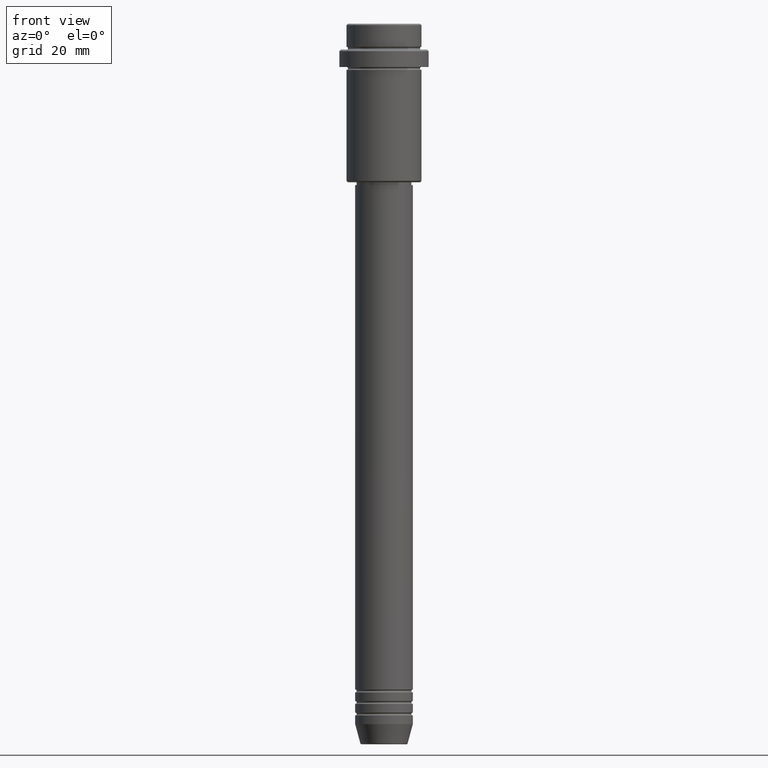
[diagram: clean part render]
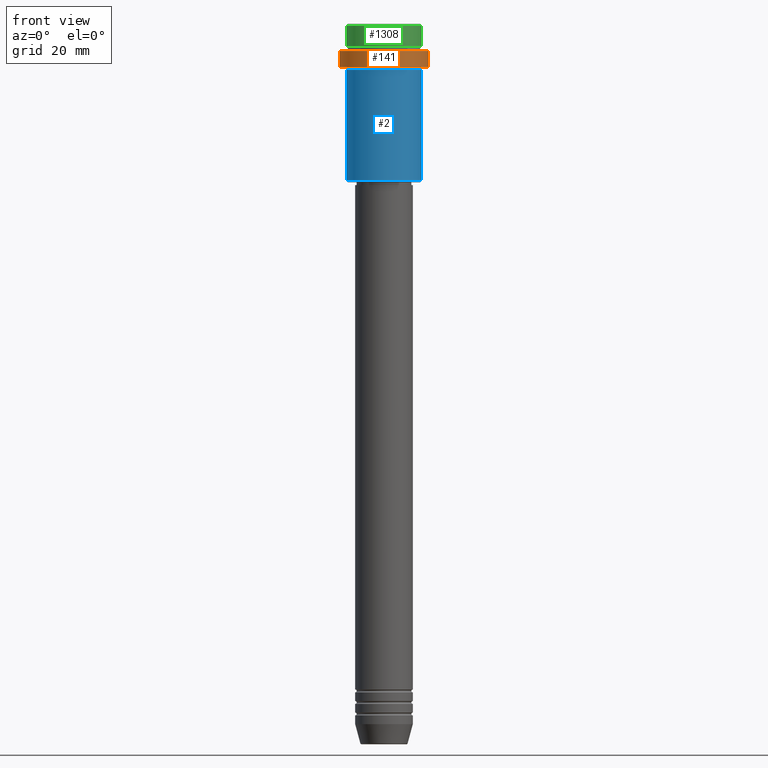
[diagram: same view with three faces highlighted in distinct colors, each labeled with its STEP entity id]
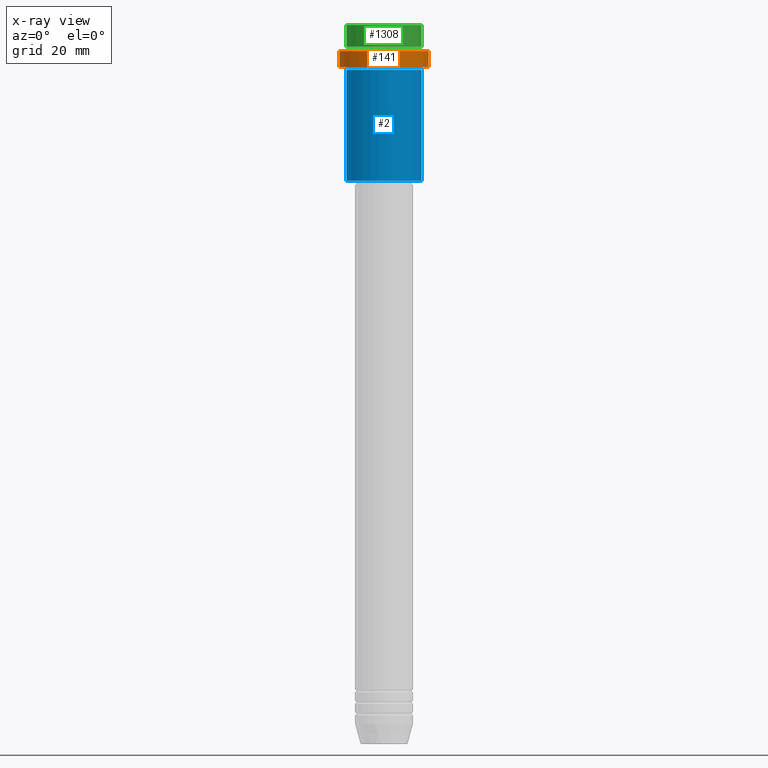
[diagram: x-ray of the same camera — body ghosted, the three highlighted faces saturated]
A machine part, front view with three faces highlighted in distinct colors.
The next image is the same camera in x-ray (body ghosted, the three faces saturated) — at least one of them is partly hidden behind the body in this view.
Their STEP definitions:

[orange] entity #141 — the highlighted cylindrical surface (partial cylindrical patch) has radius 15.5 mm, axis along (-0, -0, 1).
#10 = AXIS2_PLACEMENT_3D ( 'NONE', #1211, #1306, #1004 ) ;
#126 = LINE ( 'NONE', #559, #1109 ) ;
#141 = ADVANCED_FACE ( 'NONE', ( #1070 ), #1369, .T. ) ;
#164 = EDGE_CURVE ( 'NONE', #1010, #271, #546, .T. ) ;
#173 = CARTESIAN_POINT ( 'NONE',  ( 0.000000000000000000, 0.000000000000000000, -9.499999999999957367 ) ) ;
#183 = VERTEX_POINT ( 'NONE', #1159 ) ;
#236 = DIRECTION ( 'NONE',  ( -0.000000000000000000, -0.000000000000000000, 1.000000000000000000 ) ) ;
#246 = EDGE_CURVE ( 'NONE', #183, #778, #126, .T. ) ;
#261 = CARTESIAN_POINT ( 'NONE',  ( 15.50000000000000000, 0.000000000000000000, -9.499999999999957367 ) ) ;
#271 = VERTEX_POINT ( 'NONE', #261 ) ;
#319 = DIRECTION ( 'NONE',  ( -0.000000000000000000, -0.000000000000000000, 1.000000000000000000 ) ) ;
#362 = ORIENTED_EDGE ( 'NONE', *, *, #246, .F. ) ;
#437 = CIRCLE ( 'NONE', #761, 15.50000000000000000 ) ;
#448 = EDGE_CURVE ( 'NONE', #271, #778, #779, .T. ) ;
#493 = EDGE_LOOP ( 'NONE', ( #362, #788, #889, #1181 ) ) ;
#546 = LINE ( 'NONE', #988, #1127 ) ;
#559 = CARTESIAN_POINT ( 'NONE',  ( -15.50000000000000000, 1.898202538678397557E-15, 0.000000000000000000 ) ) ;
#673 = DIRECTION ( 'NONE',  ( 1.000000000000000000, 0.000000000000000000, 0.000000000000000000 ) ) ;
#761 = AXIS2_PLACEMENT_3D ( 'NONE', #933, #236, #673 ) ;
#778 = VERTEX_POINT ( 'NONE', #1344 ) ;
#779 = CIRCLE ( 'NONE', #850, 15.50000000000000000 ) ;
#788 = ORIENTED_EDGE ( 'NONE', *, *, #1165, .T. ) ;
#850 = AXIS2_PLACEMENT_3D ( 'NONE', #173, #1177, #1051 ) ;
#889 = ORIENTED_EDGE ( 'NONE', *, *, #164, .T. ) ;
#933 = CARTESIAN_POINT ( 'NONE',  ( 0.000000000000000000, 0.000000000000000000, -15.00000000000000178 ) ) ;
#988 = CARTESIAN_POINT ( 'NONE',  ( 15.50000000000000000, 0.000000000000000000, 0.000000000000000000 ) ) ;
#1004 = DIRECTION ( 'NONE',  ( 1.000000000000000000, 0.000000000000000000, 0.000000000000000000 ) ) ;
#1010 = VERTEX_POINT ( 'NONE', #1167 ) ;
#1051 = DIRECTION ( 'NONE',  ( 1.000000000000000000, 0.000000000000000000, 0.000000000000000000 ) ) ;
#1070 = FACE_OUTER_BOUND ( 'NONE', #493, .T. ) ;
#1109 = VECTOR ( 'NONE', #1295, 1000.000000000000000 ) ;
#1127 = VECTOR ( 'NONE', #319, 1000.000000000000000 ) ;
#1159 = CARTESIAN_POINT ( 'NONE',  ( -15.50000000000000000, 1.898202538678397557E-15, -15.00000000000000178 ) ) ;
#1165 = EDGE_CURVE ( 'NONE', #183, #1010, #437, .T. ) ;
#1167 = CARTESIAN_POINT ( 'NONE',  ( 15.50000000000000000, 0.000000000000000000, -15.00000000000000178 ) ) ;
#1177 = DIRECTION ( 'NONE',  ( 0.000000000000000000, 0.000000000000000000, -1.000000000000000000 ) ) ;
#1181 = ORIENTED_EDGE ( 'NONE', *, *, #448, .T. ) ;
#1211 = CARTESIAN_POINT ( 'NONE',  ( 0.000000000000000000, 0.000000000000000000, 0.000000000000000000 ) ) ;
#1295 = DIRECTION ( 'NONE',  ( -0.000000000000000000, -0.000000000000000000, 1.000000000000000000 ) ) ;
#1306 = DIRECTION ( 'NONE',  ( -0.000000000000000000, -0.000000000000000000, 1.000000000000000000 ) ) ;
#1344 = CARTESIAN_POINT ( 'NONE',  ( -15.50000000000000000, 1.898202538678397557E-15, -9.499999999999957367 ) ) ;
#1369 = CYLINDRICAL_SURFACE ( 'NONE', #10, 15.50000000000000000 ) ;

[blue] entity #2 — the highlighted cylindrical surface (partial cylindrical patch) has radius 13 mm, axis along (-0, -0, 1).
#2 = ADVANCED_FACE ( 'NONE', ( #966 ), #118, .T. ) ;
#9 = LINE ( 'NONE', #744, #1200 ) ;
#27 = CARTESIAN_POINT ( 'NONE',  ( 0.000000000000000000, 0.000000000000000000, -16.00000000000000000 ) ) ;
#69 = EDGE_CURVE ( 'NONE', #1238, #266, #664, .T. ) ;
#70 = DIRECTION ( 'NONE',  ( -1.000000000000000000, 0.000000000000000000, 0.000000000000000000 ) ) ;
#75 = ORIENTED_EDGE ( 'NONE', *, *, #153, .T. ) ;
#118 = CYLINDRICAL_SURFACE ( 'NONE', #1039, 13.00000000000000000 ) ;
#145 = AXIS2_PLACEMENT_3D ( 'NONE', #844, #943, #70 ) ;
#153 = EDGE_CURVE ( 'NONE', #266, #525, #202, .T. ) ;
#201 = DIRECTION ( 'NONE',  ( -0.000000000000000000, -0.000000000000000000, 1.000000000000000000 ) ) ;
#202 = LINE ( 'NONE', #331, #1289 ) ;
#222 = CARTESIAN_POINT ( 'NONE',  ( 0.000000000000000000, 0.000000000000000000, 0.000000000000000000 ) ) ;
#256 = EDGE_LOOP ( 'NONE', ( #1110, #522, #75, #368 ) ) ;
#266 = VERTEX_POINT ( 'NONE', #1025 ) ;
#331 = CARTESIAN_POINT ( 'NONE',  ( 13.00000000000000000, 0.000000000000000000, 0.000000000000000000 ) ) ;
#337 = CARTESIAN_POINT ( 'NONE',  ( -13.00000000000000000, 1.592040838891559095E-15, -54.50000000000000000 ) ) ;
#368 = ORIENTED_EDGE ( 'NONE', *, *, #1250, .F. ) ;
#380 = CARTESIAN_POINT ( 'NONE',  ( 13.00000000000000000, 0.000000000000000000, -16.00000000000000000 ) ) ;
#490 = DIRECTION ( 'NONE',  ( 1.000000000000000000, 0.000000000000000000, 0.000000000000000000 ) ) ;
#510 = AXIS2_PLACEMENT_3D ( 'NONE', #27, #775, #490 ) ;
#522 = ORIENTED_EDGE ( 'NONE', *, *, #69, .T. ) ;
#525 = VERTEX_POINT ( 'NONE', #380 ) ;
#569 = CARTESIAN_POINT ( 'NONE',  ( -13.00000000000000000, 1.592040838891559095E-15, -16.00000000000000000 ) ) ;
#664 = CIRCLE ( 'NONE', #145, 13.00000000000000000 ) ;
#744 = CARTESIAN_POINT ( 'NONE',  ( -13.00000000000000000, 1.592040838891559095E-15, 0.000000000000000000 ) ) ;
#775 = DIRECTION ( 'NONE',  ( -0.000000000000000000, -0.000000000000000000, 1.000000000000000000 ) ) ;
#844 = CARTESIAN_POINT ( 'NONE',  ( 0.000000000000000000, 0.000000000000000000, -54.50000000000000000 ) ) ;
#864 = VERTEX_POINT ( 'NONE', #569 ) ;
#943 = DIRECTION ( 'NONE',  ( -0.000000000000000000, -0.000000000000000000, 1.000000000000000000 ) ) ;
#966 = FACE_OUTER_BOUND ( 'NONE', #256, .T. ) ;
#997 = DIRECTION ( 'NONE',  ( -0.000000000000000000, -0.000000000000000000, 1.000000000000000000 ) ) ;
#1025 = CARTESIAN_POINT ( 'NONE',  ( 13.00000000000000000, 0.000000000000000000, -54.50000000000000000 ) ) ;
#1039 = AXIS2_PLACEMENT_3D ( 'NONE', #222, #201, #1319 ) ;
#1078 = EDGE_CURVE ( 'NONE', #1238, #864, #9, .T. ) ;
#1110 = ORIENTED_EDGE ( 'NONE', *, *, #1078, .F. ) ;
#1113 = CIRCLE ( 'NONE', #510, 13.00000000000000000 ) ;
#1200 = VECTOR ( 'NONE', #1413, 1000.000000000000000 ) ;
#1238 = VERTEX_POINT ( 'NONE', #337 ) ;
#1250 = EDGE_CURVE ( 'NONE', #864, #525, #1113, .T. ) ;
#1289 = VECTOR ( 'NONE', #997, 1000.000000000000000 ) ;
#1319 = DIRECTION ( 'NONE',  ( 1.000000000000000000, 0.000000000000000000, 0.000000000000000000 ) ) ;
#1413 = DIRECTION ( 'NONE',  ( -0.000000000000000000, -0.000000000000000000, 1.000000000000000000 ) ) ;

[green] entity #1308 — the highlighted cylindrical surface (partial cylindrical patch) has radius 13 mm, axis along (-0, -0, 1).
#16 = AXIS2_PLACEMENT_3D ( 'NONE', #613, #1257, #1062 ) ;
#67 = EDGE_CURVE ( 'NONE', #1347, #1336, #513, .T. ) ;
#148 = CIRCLE ( 'NONE', #948, 12.99999999999999822 ) ;
#258 = DIRECTION ( 'NONE',  ( 1.000000000000000000, 0.000000000000000000, 0.000000000000000000 ) ) ;
#317 = CYLINDRICAL_SURFACE ( 'NONE', #1223, 12.99999999999999822 ) ;
#389 = EDGE_LOOP ( 'NONE', ( #928, #520, #993, #1105 ) ) ;
#461 = CARTESIAN_POINT ( 'NONE',  ( 12.99999999999999822, 0.000000000000000000, -0.5000000000000037748 ) ) ;
#513 = LINE ( 'NONE', #739, #1215 ) ;
#520 = ORIENTED_EDGE ( 'NONE', *, *, #868, .T. ) ;
#601 = CIRCLE ( 'NONE', #16, 12.99999999999999822 ) ;
#611 = VERTEX_POINT ( 'NONE', #1106 ) ;
#613 = CARTESIAN_POINT ( 'NONE',  ( 0.000000000000000000, 0.000000000000000000, -0.5000000000000037748 ) ) ;
#706 = EDGE_CURVE ( 'NONE', #611, #853, #876, .T. ) ;
#739 = CARTESIAN_POINT ( 'NONE',  ( -12.99999999999999822, 1.592040838891558898E-15, 0.000000000000000000 ) ) ;
#750 = CARTESIAN_POINT ( 'NONE',  ( 0.000000000000000000, 0.000000000000000000, 0.000000000000000000 ) ) ;
#770 = CARTESIAN_POINT ( 'NONE',  ( 12.99999999999999822, 0.000000000000000000, 0.000000000000000000 ) ) ;
#853 = VERTEX_POINT ( 'NONE', #461 ) ;
#863 = DIRECTION ( 'NONE',  ( -0.000000000000000000, -0.000000000000000000, 1.000000000000000000 ) ) ;
#868 = EDGE_CURVE ( 'NONE', #1347, #611, #148, .T. ) ;
#876 = LINE ( 'NONE', #770, #1383 ) ;
#893 = EDGE_CURVE ( 'NONE', #853, #1336, #601, .T. ) ;
#928 = ORIENTED_EDGE ( 'NONE', *, *, #67, .F. ) ;
#948 = AXIS2_PLACEMENT_3D ( 'NONE', #1125, #1236, #258 ) ;
#957 = CARTESIAN_POINT ( 'NONE',  ( -12.99999999999999822, 1.592040838891558898E-15, -0.5000000000000037748 ) ) ;
#993 = ORIENTED_EDGE ( 'NONE', *, *, #706, .T. ) ;
#1062 = DIRECTION ( 'NONE',  ( 1.000000000000000000, 0.000000000000000000, 0.000000000000000000 ) ) ;
#1074 = DIRECTION ( 'NONE',  ( 1.000000000000000000, 0.000000000000000000, 0.000000000000000000 ) ) ;
#1087 = CARTESIAN_POINT ( 'NONE',  ( -12.99999999999999822, 1.592040838891558898E-15, -7.999999999999998224 ) ) ;
#1105 = ORIENTED_EDGE ( 'NONE', *, *, #893, .T. ) ;
#1106 = CARTESIAN_POINT ( 'NONE',  ( 12.99999999999999822, 0.000000000000000000, -7.999999999999998224 ) ) ;
#1125 = CARTESIAN_POINT ( 'NONE',  ( 0.000000000000000000, 0.000000000000000000, -7.999999999999998224 ) ) ;
#1186 = FACE_OUTER_BOUND ( 'NONE', #389, .T. ) ;
#1209 = DIRECTION ( 'NONE',  ( -0.000000000000000000, -0.000000000000000000, 1.000000000000000000 ) ) ;
#1215 = VECTOR ( 'NONE', #1393, 1000.000000000000000 ) ;
#1223 = AXIS2_PLACEMENT_3D ( 'NONE', #750, #863, #1074 ) ;
#1236 = DIRECTION ( 'NONE',  ( -0.000000000000000000, -0.000000000000000000, 1.000000000000000000 ) ) ;
#1257 = DIRECTION ( 'NONE',  ( 0.000000000000000000, 0.000000000000000000, -1.000000000000000000 ) ) ;
#1308 = ADVANCED_FACE ( 'NONE', ( #1186 ), #317, .T. ) ;
#1336 = VERTEX_POINT ( 'NONE', #957 ) ;
#1347 = VERTEX_POINT ( 'NONE', #1087 ) ;
#1383 = VECTOR ( 'NONE', #1209, 1000.000000000000000 ) ;
#1393 = DIRECTION ( 'NONE',  ( -0.000000000000000000, -0.000000000000000000, 1.000000000000000000 ) ) ;